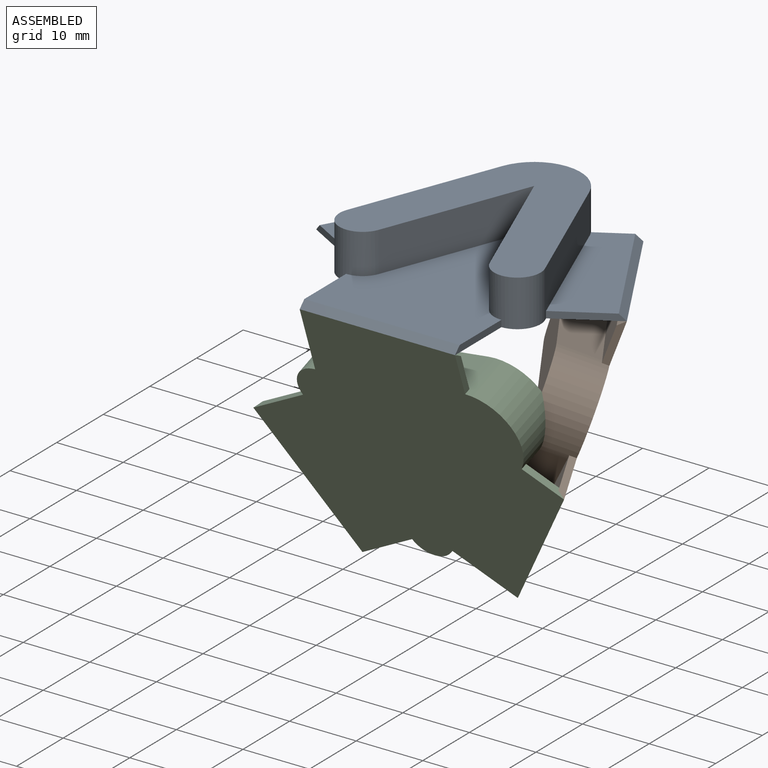
[diagram: assembled view]
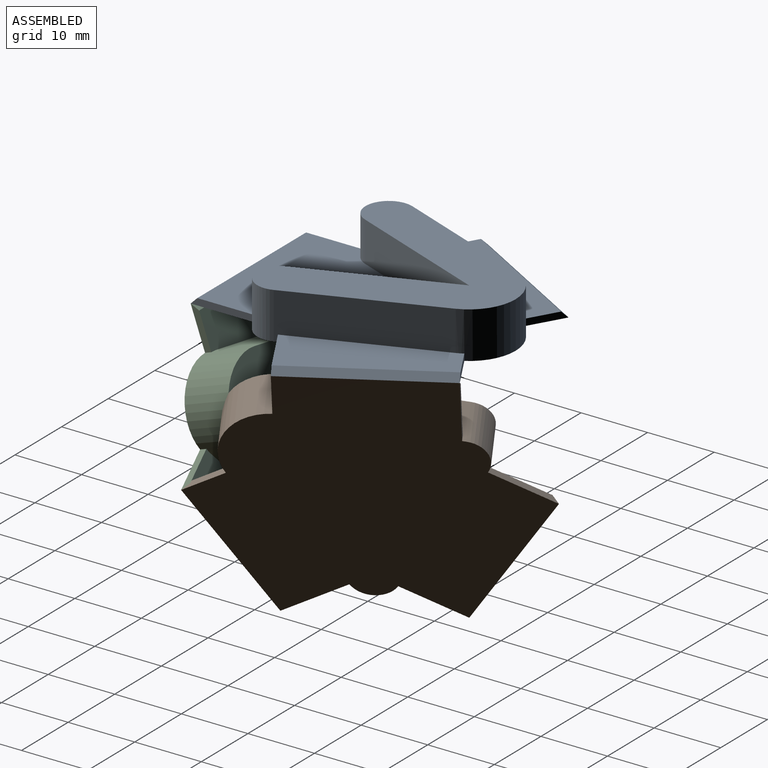
[diagram: assembled view, second angle]
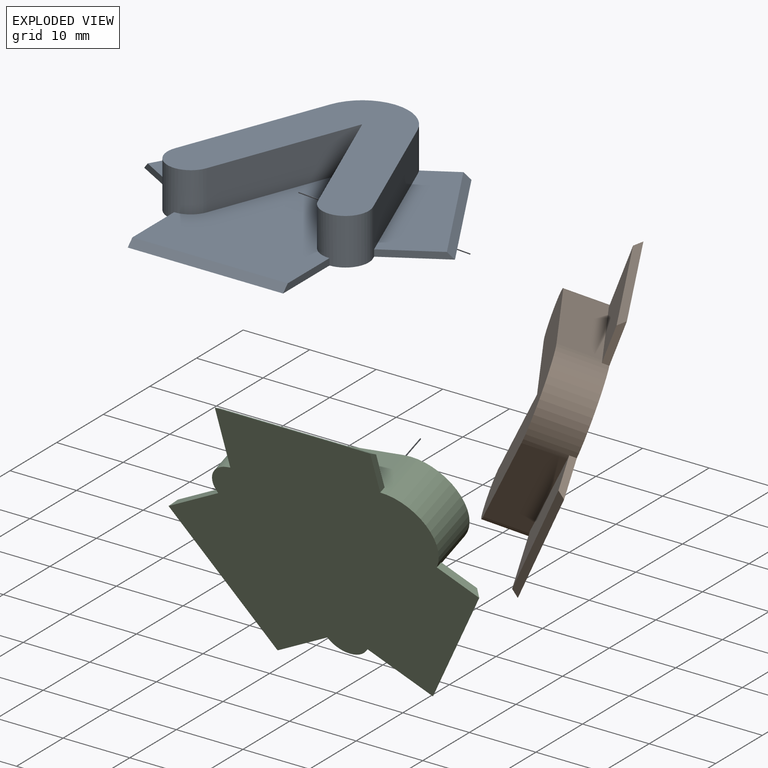
[diagram: exploded view]
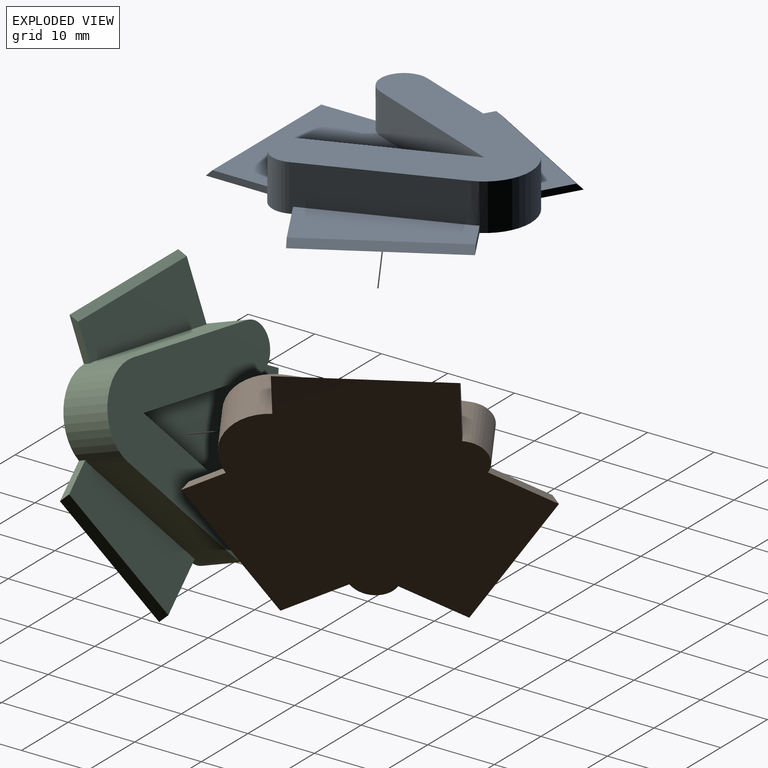
[diagram: exploded view, second angle]
ASSEMBLY  parts=3 mates=5
PART A: 21 faces, bbox 46.7x40.6x7 mm
  f0: cylinder r=3.5mm len=7mm, axis (0,0,-1), area 72.7mm2, adj f3,f4,f7,f8,f9,f11
  f1: cylinder r=7mm len=13.05mm, axis (0,0,-1), area 115.4mm2, adj f2,f4,f7,f8,f12,f14,f15,f17
  f2: plane 21.46x8.35mm, normal (-0.93,0.36,0), area 138.7mm2, adj f1,f5,f7,f8,f12,f13
  f3: plane 21.46x8.35mm, normal (-0.93,-0.36,0), area 138.2mm2, adj f0,f6,f7,f9
  f4: plane 21.46x8.35mm, normal (0.93,0.36,0), area 138.7mm2, adj f0,f1,f7,f8,f15,f16
  f5: cylinder r=3.5mm len=7mm, axis (0,0,-1), area 72.7mm2, adj f2,f6,f7,f8,f9,f10
  f6: plane 21.46x8.35mm, normal (0.93,-0.36,0), area 138.2mm2, adj f3,f5,f7,f9
  f7: plane 30.69x30.23mm, normal (0,0,1), area 419.7mm2, adj f0,f1,f2,f3,f4,f5,f6
  f8: plane 46.67x40.65mm, normal (0,0,-1), area 1254.9mm2, adj f0,f1,f2,f4,f5,f10,f11,f13
  f9: plane 32.65x23.33mm, normal (0,0,1), area 429.5mm2, adj f0,f3,f5,f6,f10,f11,f18
  f10: plane 9.96x1mm, normal (-1,0,0), area 9.5mm2, adj f5,f8,f9,f18
  f11: plane 9.96x1mm, normal (1,0,0), area 9.5mm2, adj f0,f8,f9,f18
  f12: plane 24.7x16.42mm, normal (0,0,1), area 167.9mm2, adj f1,f2,f13,f14,f20
  f13: plane 8.65x4.99mm, normal (-0.5,-0.87,0), area 9.5mm2, adj f2,f8,f12,f20
  f14: plane 5.62x3.24mm, normal (0.5,0.87,0), area 6mm2, adj f1,f8,f12,f20
  f15: plane 24.7x16.42mm, normal (0,0,1), area 167.9mm2, adj f1,f4,f16,f17,f19
  f16: plane 8.65x4.99mm, normal (0.5,-0.87,0), area 9.5mm2, adj f4,f8,f15,f19
  f17: plane 5.62x3.24mm, normal (-0.5,0.87,0), area 6mm2, adj f1,f8,f15,f19
  f18: plane 23.33x1mm, normal (0,-0.71,0.71), area 33mm2, adj f8,f9,f10,f11
  f19: plane 20.71x12.53mm, normal (0.61,0.35,0.71), area 33mm2, adj f8,f15,f16,f17
  f20: plane 20.71x12.53mm, normal (-0.61,0.35,0.71), area 33mm2, adj f8,f12,f13,f14
PART B: same geometry as A
PART C: same geometry as A
PLACE A t=(0.12,-1.14,2.33)mm fixed
PLACE B rot(axis=(0.63,0,-0.77),131.8deg) t=(11.79,5.6,-16.72)mm
PLACE C rot(axis=(-0.32,-0.55,-0.77),131.8deg) t=(0.12,-14.61,-16.72)mm
MATE ball B.f8 <-> A.f8  axis (-0.82,-0.47,0.33) through (23.46,-1.14,2.33)mm
MATE ball C.f8 <-> B.f8  axis (0,0.94,0.33) through (11.79,-7.88,-35.77)mm
MATE ball C.f8 <-> A.f8  axis (0,0.94,0.33) through (-11.54,-21.35,2.33)mm
MATE ball C.f8 <-> B.f8  axis (0,0.94,0.33) through (23.46,-14.61,-16.72)mm
MATE ball B.f8 <-> A.f8  axis (-0.82,-0.47,0.33) through (11.79,19.07,2.33)mm
